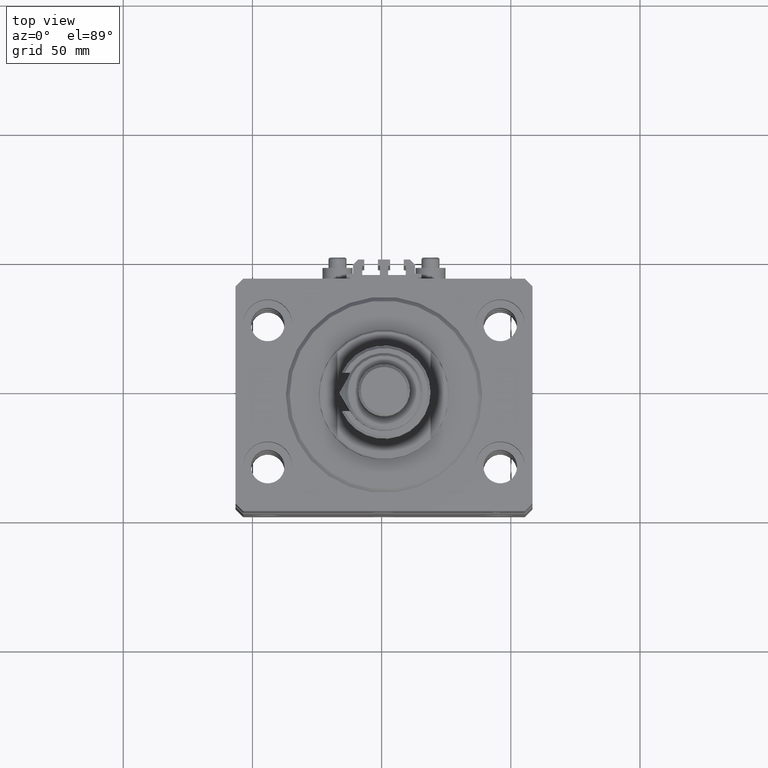
[diagram: clean part render]
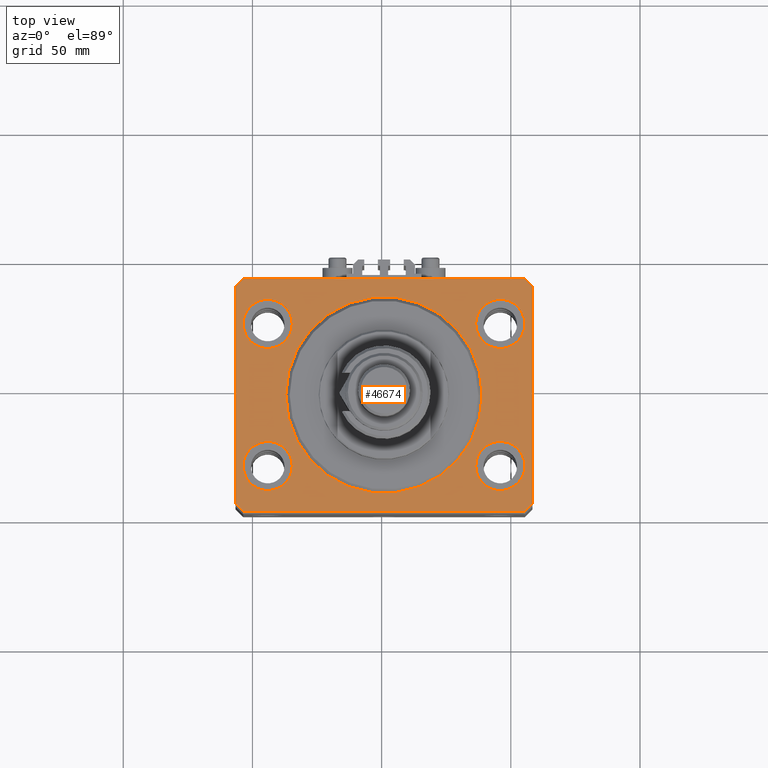
[diagram: same view with one face highlighted and labeled with its STEP entity id]
A machine part, top view. The second image highlights one B-rep face of the part: STEP entity #46674.
In plain terms, the highlighted planar face has unit normal (0, 0, 1).
Its self-contained STEP definition (entity closure, byte-faithful):
#116 = DIRECTION ( 'NONE',  ( 1.000000000000000000, 0.000000000000000000, 0.000000000000000000 ) ) ;
#190 = DIRECTION ( 'NONE',  ( 1.000000000000000000, 0.000000000000000000, 0.000000000000000000 ) ) ;
#367 = ORIENTED_EDGE ( 'NONE', *, *, #9310, .F. ) ;
#1108 = AXIS2_PLACEMENT_3D ( 'NONE', #18975, #35194, #52192 ) ;
#1298 = DIRECTION ( 'NONE',  ( 0.000000000000000000, 0.000000000000000000, 1.000000000000000000 ) ) ;
#1355 = DIRECTION ( 'NONE',  ( 0.000000000000000000, 0.000000000000000000, 1.000000000000000000 ) ) ;
#1613 = CARTESIAN_POINT ( 'NONE',  ( -38.00000000000000000, 4.653657836759941941E-15, 0.000000000000000000 ) ) ;
#1645 = CARTESIAN_POINT ( 'NONE',  ( 54.50000000000000711, -44.99999999999998579, 0.000000000000000000 ) ) ;
#1767 = DIRECTION ( 'NONE',  ( 1.000000000000000000, 0.000000000000000000, -0.000000000000000000 ) ) ;
#2699 = LINE ( 'NONE', #42563, #47624 ) ;
#3473 = DIRECTION ( 'NONE',  ( -2.478176394252581141E-16, -1.000000000000000000, 0.000000000000000000 ) ) ;
#3565 = DIRECTION ( 'NONE',  ( 0.7071067811865491270, -0.7071067811865459074, 0.000000000000000000 ) ) ;
#4102 = CARTESIAN_POINT ( 'NONE',  ( -54.50000000000000711, -45.00000000000000000, 0.000000000000000000 ) ) ;
#4438 = VERTEX_POINT ( 'NONE', #31924 ) ;
#4845 = DIRECTION ( 'NONE',  ( -1.000000000000000000, -2.546383084002639322E-16, 0.000000000000000000 ) ) ;
#5043 = VERTEX_POINT ( 'NONE', #35776 ) ;
#5407 = ORIENTED_EDGE ( 'NONE', *, *, #26171, .T. ) ;
#5553 = ORIENTED_EDGE ( 'NONE', *, *, #39269, .F. ) ;
#5993 = CIRCLE ( 'NONE', #36536, 9.500000000000001776 ) ;
#7555 = LINE ( 'NONE', #11553, #21976 ) ;
#9016 = EDGE_CURVE ( 'NONE', #30393, #33876, #20813, .T. ) ;
#9084 = ORIENTED_EDGE ( 'NONE', *, *, #23889, .F. ) ;
#9310 = EDGE_CURVE ( 'NONE', #35277, #39054, #43858, .T. ) ;
#10267 = FACE_OUTER_BOUND ( 'NONE', #18482, .T. ) ;
#10589 = VERTEX_POINT ( 'NONE', #45370 ) ;
#10609 = DIRECTION ( 'NONE',  ( 6.443258625056715108E-15, 1.000000000000000000, 0.000000000000000000 ) ) ;
#10705 = ORIENTED_EDGE ( 'NONE', *, *, #33853, .T. ) ;
#11553 = CARTESIAN_POINT ( 'NONE',  ( -57.50000000000000711, -42.00000000000000711, 0.000000000000000000 ) ) ;
#11611 = CARTESIAN_POINT ( 'NONE',  ( 45.00000000000000000, -27.49999999999999645, 0.000000000000000000 ) ) ;
#12153 = DIRECTION ( 'NONE',  ( 0.000000000000000000, 0.000000000000000000, 1.000000000000000000 ) ) ;
#12747 = CARTESIAN_POINT ( 'NONE',  ( -57.50000000000000711, -42.00000000000000711, 0.000000000000000000 ) ) ;
#12948 = VERTEX_POINT ( 'NONE', #18748 ) ;
#13376 = ORIENTED_EDGE ( 'NONE', *, *, #42176, .F. ) ;
#13494 = EDGE_CURVE ( 'NONE', #33668, #5043, #44320, .T. ) ;
#13565 = AXIS2_PLACEMENT_3D ( 'NONE', #42009, #1355, #33511 ) ;
#13980 = FACE_BOUND ( 'NONE', #39713, .T. ) ;
#14544 = DIRECTION ( 'NONE',  ( 1.000000000000000000, 0.000000000000000000, 0.000000000000000000 ) ) ;
#15239 = LINE ( 'NONE', #51677, #40042 ) ;
#15276 = AXIS2_PLACEMENT_3D ( 'NONE', #42725, #35296, #14544 ) ;
#15640 = DIRECTION ( 'NONE',  ( 0.000000000000000000, 0.000000000000000000, 1.000000000000000000 ) ) ;
#15992 = VERTEX_POINT ( 'NONE', #20601 ) ;
#16103 = EDGE_CURVE ( 'NONE', #15992, #17381, #15239, .T. ) ;
#16114 = EDGE_LOOP ( 'NONE', ( #18875, #9084 ) ) ;
#16318 = AXIS2_PLACEMENT_3D ( 'NONE', #21497, #1298, #29211 ) ;
#16486 = ORIENTED_EDGE ( 'NONE', *, *, #29582, .F. ) ;
#17381 = VERTEX_POINT ( 'NONE', #50409 ) ;
#18318 = LINE ( 'NONE', #34541, #47777 ) ;
#18482 = EDGE_LOOP ( 'NONE', ( #49939, #51833, #32807, #10705, #20710, #5407, #49991, #31151 ) ) ;
#18563 = EDGE_CURVE ( 'NONE', #39054, #35277, #19789, .T. ) ;
#18748 = CARTESIAN_POINT ( 'NONE',  ( -54.50000000000000000, 27.50000000000000355, 0.000000000000000000 ) ) ;
#18875 = ORIENTED_EDGE ( 'NONE', *, *, #38533, .F. ) ;
#18975 = CARTESIAN_POINT ( 'NONE',  ( -45.00000000000000000, -27.49999999999999645, 0.000000000000000000 ) ) ;
#19070 = DIRECTION ( 'NONE',  ( 1.000000000000000000, 0.000000000000000000, 0.000000000000000000 ) ) ;
#19789 = CIRCLE ( 'NONE', #1108, 9.500000000000001776 ) ;
#20090 = VECTOR ( 'NONE', #41191, 1000.000000000000000 ) ;
#20191 = ORIENTED_EDGE ( 'NONE', *, *, #13494, .F. ) ;
#20434 = CARTESIAN_POINT ( 'NONE',  ( 54.50000000000000000, 27.50000000000001776, 0.000000000000000000 ) ) ;
#20525 = LINE ( 'NONE', #29025, #51365 ) ;
#20601 = CARTESIAN_POINT ( 'NONE',  ( 57.50000000000055422, 41.99999999999997868, 0.000000000000000000 ) ) ;
#20710 = ORIENTED_EDGE ( 'NONE', *, *, #25331, .T. ) ;
#20813 = CIRCLE ( 'NONE', #31840, 38.00000000000000000 ) ;
#20907 = ORIENTED_EDGE ( 'NONE', *, *, #9016, .F. ) ;
#21497 = CARTESIAN_POINT ( 'NONE',  ( 45.00000000000000000, 27.50000000000001776, 0.000000000000000000 ) ) ;
#21976 = VECTOR ( 'NONE', #3565, 1000.000000000000114 ) ;
#22448 = EDGE_CURVE ( 'NONE', #17381, #4438, #20525, .T. ) ;
#22516 = AXIS2_PLACEMENT_3D ( 'NONE', #11611, #23825, #48028 ) ;
#23319 = EDGE_LOOP ( 'NONE', ( #38308, #367 ) ) ;
#23825 = DIRECTION ( 'NONE',  ( 0.000000000000000000, 0.000000000000000000, 1.000000000000000000 ) ) ;
#23889 = EDGE_CURVE ( 'NONE', #34714, #41571, #45425, .T. ) ;
#23890 = DIRECTION ( 'NONE',  ( 1.000000000000000000, 0.000000000000000000, 0.000000000000000000 ) ) ;
#24993 = LINE ( 'NONE', #50414, #20090 ) ;
#25100 = LINE ( 'NONE', #4102, #25154 ) ;
#25154 = VECTOR ( 'NONE', #33305, 1000.000000000000000 ) ;
#25331 = EDGE_CURVE ( 'NONE', #28337, #44889, #25100, .T. ) ;
#26171 = EDGE_CURVE ( 'NONE', #44889, #40601, #24993, .T. ) ;
#26491 = DIRECTION ( 'NONE',  ( 0.000000000000000000, 0.000000000000000000, 1.000000000000000000 ) ) ;
#28042 = CIRCLE ( 'NONE', #15276, 9.500000000000001776 ) ;
#28337 = VERTEX_POINT ( 'NONE', #50714 ) ;
#28463 = CARTESIAN_POINT ( 'NONE',  ( -57.49999999999998579, 42.00000000000000711, 0.000000000000000000 ) ) ;
#29025 = CARTESIAN_POINT ( 'NONE',  ( 54.50000000000058975, 45.00000000000002842, 0.000000000000000000 ) ) ;
#29211 = DIRECTION ( 'NONE',  ( 1.000000000000000000, 0.000000000000000000, 0.000000000000000000 ) ) ;
#29415 = CIRCLE ( 'NONE', #44709, 9.500000000000001776 ) ;
#29582 = EDGE_CURVE ( 'NONE', #12948, #49320, #29415, .T. ) ;
#30208 = FACE_BOUND ( 'NONE', #34595, .T. ) ;
#30393 = VERTEX_POINT ( 'NONE', #1613 ) ;
#30603 = DIRECTION ( 'NONE',  ( -0.7071067811865483499, -0.7071067811865466846, 0.000000000000000000 ) ) ;
#31151 = ORIENTED_EDGE ( 'NONE', *, *, #16103, .T. ) ;
#31424 = CIRCLE ( 'NONE', #13565, 38.00000000000000000 ) ;
#31494 = CARTESIAN_POINT ( 'NONE',  ( -35.50000000000000000, -27.49999999999999645, 0.000000000000000000 ) ) ;
#31840 = AXIS2_PLACEMENT_3D ( 'NONE', #40093, #15640, #23890 ) ;
#31924 = CARTESIAN_POINT ( 'NONE',  ( -54.49999999999999289, 45.00000000000000000, 0.000000000000000000 ) ) ;
#32343 = CARTESIAN_POINT ( 'NONE',  ( -45.00000000000000000, -27.49999999999999645, 0.000000000000000000 ) ) ;
#32807 = ORIENTED_EDGE ( 'NONE', *, *, #47038, .T. ) ;
#33305 = DIRECTION ( 'NONE',  ( 1.000000000000000000, 1.273191542001326317E-16, 0.000000000000000000 ) ) ;
#33313 = CARTESIAN_POINT ( 'NONE',  ( 45.00000000000000000, 27.50000000000001776, 0.000000000000000000 ) ) ;
#33511 = DIRECTION ( 'NONE',  ( 1.000000000000000000, 0.000000000000000000, 0.000000000000000000 ) ) ;
#33668 = VERTEX_POINT ( 'NONE', #20434 ) ;
#33853 = EDGE_CURVE ( 'NONE', #33998, #28337, #7555, .T. ) ;
#33876 = VERTEX_POINT ( 'NONE', #51442 ) ;
#33924 = CARTESIAN_POINT ( 'NONE',  ( 0.000000000000000000, 0.000000000000000000, 0.000000000000000000 ) ) ;
#33998 = VERTEX_POINT ( 'NONE', #12747 ) ;
#34541 = CARTESIAN_POINT ( 'NONE',  ( 57.50000000000000711, -41.99999999999998579, 0.000000000000000000 ) ) ;
#34595 = EDGE_LOOP ( 'NONE', ( #13376, #16486 ) ) ;
#34714 = VERTEX_POINT ( 'NONE', #51168 ) ;
#35194 = DIRECTION ( 'NONE',  ( 0.000000000000000000, 0.000000000000000000, 1.000000000000000000 ) ) ;
#35277 = VERTEX_POINT ( 'NONE', #43587 ) ;
#35296 = DIRECTION ( 'NONE',  ( 0.000000000000000000, 0.000000000000000000, 1.000000000000000000 ) ) ;
#35545 = DIRECTION ( 'NONE',  ( 1.000000000000000000, 0.000000000000000000, 0.000000000000000000 ) ) ;
#35716 = CARTESIAN_POINT ( 'NONE',  ( 54.50000000000000000, -27.49999999999999645, 0.000000000000000000 ) ) ;
#35776 = CARTESIAN_POINT ( 'NONE',  ( 35.50000000000000000, 27.50000000000001776, 0.000000000000000000 ) ) ;
#35879 = CARTESIAN_POINT ( 'NONE',  ( -35.50000000000000000, 27.50000000000000355, 0.000000000000000000 ) ) ;
#36536 = AXIS2_PLACEMENT_3D ( 'NONE', #33313, #37060, #116 ) ;
#37060 = DIRECTION ( 'NONE',  ( 0.000000000000000000, 0.000000000000000000, 1.000000000000000000 ) ) ;
#38284 = EDGE_CURVE ( 'NONE', #33876, #30393, #31424, .T. ) ;
#38308 = ORIENTED_EDGE ( 'NONE', *, *, #18563, .F. ) ;
#38439 = PLANE ( 'NONE',  #44459 ) ;
#38533 = EDGE_CURVE ( 'NONE', #41571, #34714, #28042, .T. ) ;
#39054 = VERTEX_POINT ( 'NONE', #31494 ) ;
#39266 = DIRECTION ( 'NONE',  ( 0.000000000000000000, 0.000000000000000000, 1.000000000000000000 ) ) ;
#39269 = EDGE_CURVE ( 'NONE', #5043, #33668, #5993, .T. ) ;
#39713 = EDGE_LOOP ( 'NONE', ( #20191, #5553 ) ) ;
#40042 = VECTOR ( 'NONE', #40493, 999.9999999999998863 ) ;
#40093 = CARTESIAN_POINT ( 'NONE',  ( 0.000000000000000000, 0.000000000000000000, 0.000000000000000000 ) ) ;
#40425 = CARTESIAN_POINT ( 'NONE',  ( 57.50000000000000711, -41.99999999999998579, 0.000000000000000000 ) ) ;
#40493 = DIRECTION ( 'NONE',  ( -0.7071067811865376918, 0.7071067811865574537, 0.000000000000000000 ) ) ;
#40527 = EDGE_CURVE ( 'NONE', #4438, #10589, #2699, .T. ) ;
#40601 = VERTEX_POINT ( 'NONE', #40425 ) ;
#41191 = DIRECTION ( 'NONE',  ( 0.7071067811865483499, 0.7071067811865466846, 0.000000000000000000 ) ) ;
#41571 = VERTEX_POINT ( 'NONE', #35716 ) ;
#41758 = AXIS2_PLACEMENT_3D ( 'NONE', #51759, #43512, #19070 ) ;
#42009 = CARTESIAN_POINT ( 'NONE',  ( 0.000000000000000000, 0.000000000000000000, 0.000000000000000000 ) ) ;
#42176 = EDGE_CURVE ( 'NONE', #49320, #12948, #51946, .T. ) ;
#42563 = CARTESIAN_POINT ( 'NONE',  ( -54.49999999999999289, 45.00000000000000000, 0.000000000000000000 ) ) ;
#42725 = CARTESIAN_POINT ( 'NONE',  ( 45.00000000000000000, -27.49999999999999645, 0.000000000000000000 ) ) ;
#43261 = CARTESIAN_POINT ( 'NONE',  ( -45.00000000000000000, 27.50000000000000355, 0.000000000000000000 ) ) ;
#43512 = DIRECTION ( 'NONE',  ( 0.000000000000000000, 0.000000000000000000, 1.000000000000000000 ) ) ;
#43587 = CARTESIAN_POINT ( 'NONE',  ( -54.50000000000000000, -27.49999999999999645, 0.000000000000000000 ) ) ;
#43736 = AXIS2_PLACEMENT_3D ( 'NONE', #32343, #12153, #190 ) ;
#43858 = CIRCLE ( 'NONE', #43736, 9.500000000000001776 ) ;
#44320 = CIRCLE ( 'NONE', #16318, 9.500000000000001776 ) ;
#44459 = AXIS2_PLACEMENT_3D ( 'NONE', #33924, #26491, #1767 ) ;
#44709 = AXIS2_PLACEMENT_3D ( 'NONE', #43261, #39266, #35545 ) ;
#44889 = VERTEX_POINT ( 'NONE', #1645 ) ;
#45370 = CARTESIAN_POINT ( 'NONE',  ( -57.49999999999998579, 42.00000000000000711, 0.000000000000000000 ) ) ;
#45425 = CIRCLE ( 'NONE', #22516, 9.500000000000001776 ) ;
#46155 = FACE_BOUND ( 'NONE', #47312, .T. ) ;
#46674 = ADVANCED_FACE ( 'NONE', ( #46677, #46945, #13980, #30208, #46155, #10267 ), #38439, .T. ) ;
#46677 = FACE_BOUND ( 'NONE', #23319, .T. ) ;
#46945 = FACE_BOUND ( 'NONE', #16114, .T. ) ;
#47038 = EDGE_CURVE ( 'NONE', #10589, #33998, #48931, .T. ) ;
#47300 = EDGE_CURVE ( 'NONE', #40601, #15992, #18318, .T. ) ;
#47312 = EDGE_LOOP ( 'NONE', ( #52246, #20907 ) ) ;
#47624 = VECTOR ( 'NONE', #30603, 1000.000000000000000 ) ;
#47777 = VECTOR ( 'NONE', #10609, 1000.000000000000000 ) ;
#48028 = DIRECTION ( 'NONE',  ( 1.000000000000000000, 0.000000000000000000, 0.000000000000000000 ) ) ;
#48931 = LINE ( 'NONE', #28463, #51190 ) ;
#49320 = VERTEX_POINT ( 'NONE', #35879 ) ;
#49939 = ORIENTED_EDGE ( 'NONE', *, *, #22448, .T. ) ;
#49991 = ORIENTED_EDGE ( 'NONE', *, *, #47300, .T. ) ;
#50409 = CARTESIAN_POINT ( 'NONE',  ( 54.50000000000058975, 45.00000000000002842, 0.000000000000000000 ) ) ;
#50414 = CARTESIAN_POINT ( 'NONE',  ( 54.50000000000000711, -44.99999999999998579, 0.000000000000000000 ) ) ;
#50714 = CARTESIAN_POINT ( 'NONE',  ( -54.50000000000000711, -45.00000000000000000, 0.000000000000000000 ) ) ;
#51168 = CARTESIAN_POINT ( 'NONE',  ( 35.50000000000000000, -27.49999999999999645, 0.000000000000000000 ) ) ;
#51190 = VECTOR ( 'NONE', #3473, 1000.000000000000000 ) ;
#51365 = VECTOR ( 'NONE', #4845, 1000.000000000000000 ) ;
#51442 = CARTESIAN_POINT ( 'NONE',  ( 38.00000000000000000, 0.000000000000000000, 0.000000000000000000 ) ) ;
#51677 = CARTESIAN_POINT ( 'NONE',  ( 57.50000000000055422, 41.99999999999997868, 0.000000000000000000 ) ) ;
#51759 = CARTESIAN_POINT ( 'NONE',  ( -45.00000000000000000, 27.50000000000000355, 0.000000000000000000 ) ) ;
#51833 = ORIENTED_EDGE ( 'NONE', *, *, #40527, .T. ) ;
#51946 = CIRCLE ( 'NONE', #41758, 9.500000000000001776 ) ;
#52192 = DIRECTION ( 'NONE',  ( 1.000000000000000000, 0.000000000000000000, 0.000000000000000000 ) ) ;
#52246 = ORIENTED_EDGE ( 'NONE', *, *, #38284, .F. ) ;